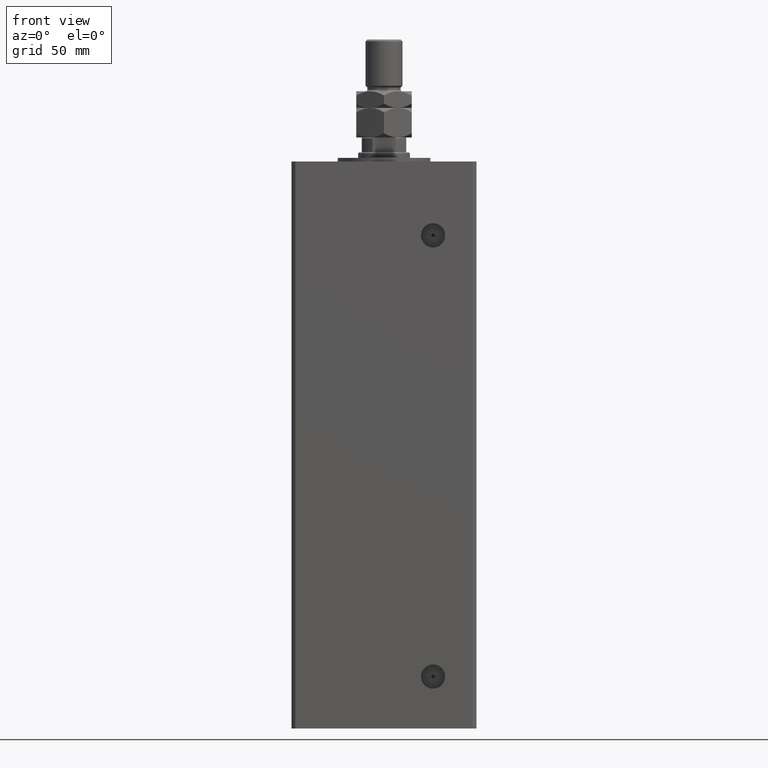
[diagram: clean part render]
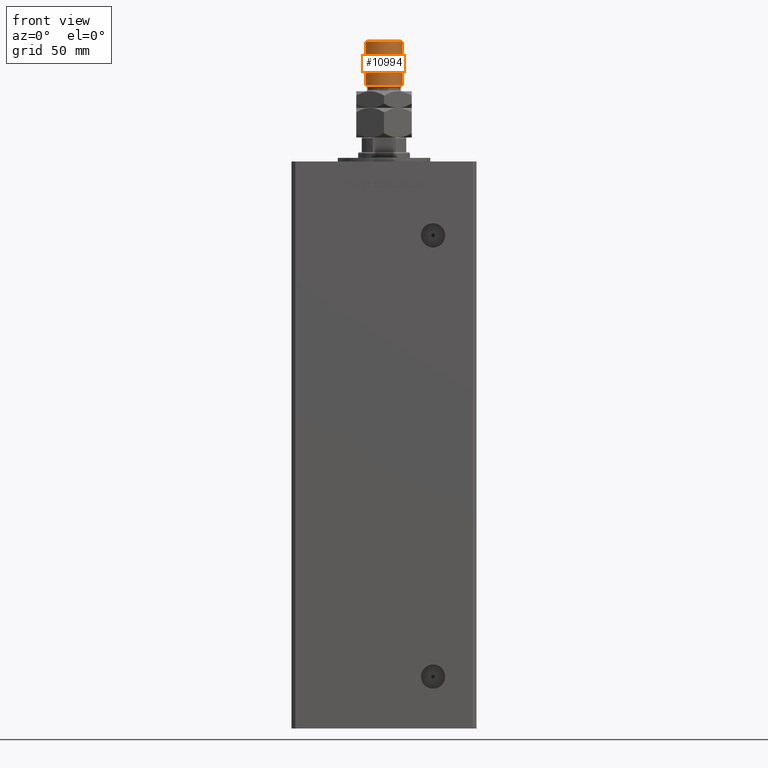
[diagram: same view with one face highlighted and labeled with its STEP entity id]
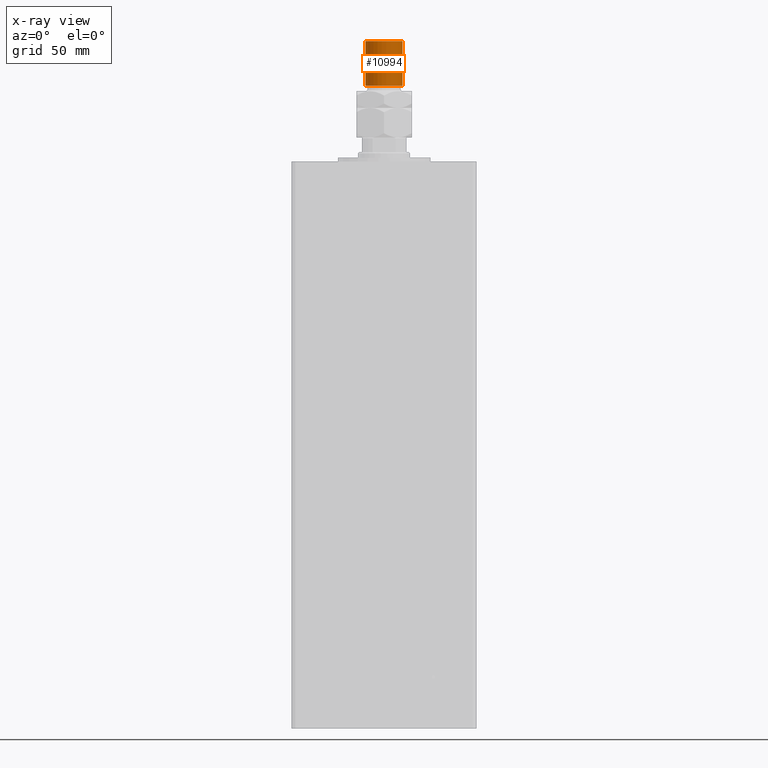
[diagram: x-ray of the same camera — body ghosted, the highlighted face saturated]
A machine part, front view. The second image highlights one B-rep face of the part: STEP entity #10994.
The next image is the same camera in x-ray: the body ghosted, the highlighted face saturated — about 0% of this face is hidden behind the body in this view.
In plain terms, the highlighted cylindrical surface (edge-blend (fillet) strip) has radius 10 mm, axis along (-0, -0, -1).
Its self-contained STEP definition (entity closure, byte-faithful):
#1022 = CARTESIAN_POINT ( 'NONE',  ( 10.00000000000000000, 1.224646799147353059E-15, 53.00000000000000711 ) ) ;
#1541 = EDGE_CURVE ( 'NONE', #21775, #47932, #46761, .T. ) ;
#9911 = DIRECTION ( 'NONE',  ( -1.000000000000000000, 0.000000000000000000, 0.000000000000000000 ) ) ;
#9997 = AXIS2_PLACEMENT_3D ( 'NONE', #32890, #40506, #28018 ) ;
#10319 = AXIS2_PLACEMENT_3D ( 'NONE', #25685, #47140, #9911 ) ;
#10994 = ADVANCED_FACE ( 'NONE', ( #17787 ), #50152, .T. ) ;
#12999 = DIRECTION ( 'NONE',  ( -0.000000000000000000, -0.000000000000000000, -1.000000000000000000 ) ) ;
#17203 = AXIS2_PLACEMENT_3D ( 'NONE', #17884, #21966, #26053 ) ;
#17370 = EDGE_LOOP ( 'NONE', ( #50145, #17460, #24984, #45916 ) ) ;
#17434 = EDGE_CURVE ( 'NONE', #36943, #27934, #50768, .T. ) ;
#17460 = ORIENTED_EDGE ( 'NONE', *, *, #33692, .T. ) ;
#17787 = FACE_OUTER_BOUND ( 'NONE', #17370, .T. ) ;
#17884 = CARTESIAN_POINT ( 'NONE',  ( 0.000000000000000000, 0.000000000000000000, 52.00000000000004974 ) ) ;
#18587 = CARTESIAN_POINT ( 'NONE',  ( 10.00000000000000000, 1.224646799147353059E-15, 52.00000000000004974 ) ) ;
#20943 = CARTESIAN_POINT ( 'NONE',  ( -10.00000000000000000, 0.000000000000000000, 52.00000000000004974 ) ) ;
#21775 = VERTEX_POINT ( 'NONE', #20943 ) ;
#21966 = DIRECTION ( 'NONE',  ( 0.000000000000000000, 0.000000000000000000, -1.000000000000000000 ) ) ;
#22408 = CIRCLE ( 'NONE', #17203, 10.00000000000000000 ) ;
#24468 = EDGE_CURVE ( 'NONE', #47932, #27934, #33432, .T. ) ;
#24668 = VECTOR ( 'NONE', #12999, 1000.000000000000000 ) ;
#24984 = ORIENTED_EDGE ( 'NONE', *, *, #1541, .T. ) ;
#25685 = CARTESIAN_POINT ( 'NONE',  ( 0.000000000000000000, 0.000000000000000000, 53.00000000000000711 ) ) ;
#26053 = DIRECTION ( 'NONE',  ( 1.000000000000000000, 0.000000000000000000, 0.000000000000000000 ) ) ;
#26115 = DIRECTION ( 'NONE',  ( -0.000000000000000000, -0.000000000000000000, -1.000000000000000000 ) ) ;
#26930 = CARTESIAN_POINT ( 'NONE',  ( -10.00000000000000000, 0.000000000000000000, 28.00000000000002487 ) ) ;
#27934 = VERTEX_POINT ( 'NONE', #51226 ) ;
#28018 = DIRECTION ( 'NONE',  ( 1.000000000000000000, 0.000000000000000000, 0.000000000000000000 ) ) ;
#32890 = CARTESIAN_POINT ( 'NONE',  ( 0.000000000000000000, 0.000000000000000000, 28.00000000000002487 ) ) ;
#33432 = CIRCLE ( 'NONE', #9997, 10.00000000000000000 ) ;
#33692 = EDGE_CURVE ( 'NONE', #36943, #21775, #22408, .T. ) ;
#35353 = VECTOR ( 'NONE', #26115, 1000.000000000000000 ) ;
#36943 = VERTEX_POINT ( 'NONE', #18587 ) ;
#40506 = DIRECTION ( 'NONE',  ( -0.000000000000000000, -0.000000000000000000, 1.000000000000000000 ) ) ;
#45916 = ORIENTED_EDGE ( 'NONE', *, *, #24468, .T. ) ;
#46761 = LINE ( 'NONE', #51117, #35353 ) ;
#47140 = DIRECTION ( 'NONE',  ( -0.000000000000000000, -0.000000000000000000, -1.000000000000000000 ) ) ;
#47932 = VERTEX_POINT ( 'NONE', #26930 ) ;
#50145 = ORIENTED_EDGE ( 'NONE', *, *, #17434, .F. ) ;
#50152 = CYLINDRICAL_SURFACE ( 'NONE', #10319, 10.00000000000000000 ) ;
#50768 = LINE ( 'NONE', #1022, #24668 ) ;
#51117 = CARTESIAN_POINT ( 'NONE',  ( -10.00000000000000000, 0.000000000000000000, 53.00000000000000711 ) ) ;
#51226 = CARTESIAN_POINT ( 'NONE',  ( 10.00000000000000000, 1.224646799147353059E-15, 28.00000000000002487 ) ) ;